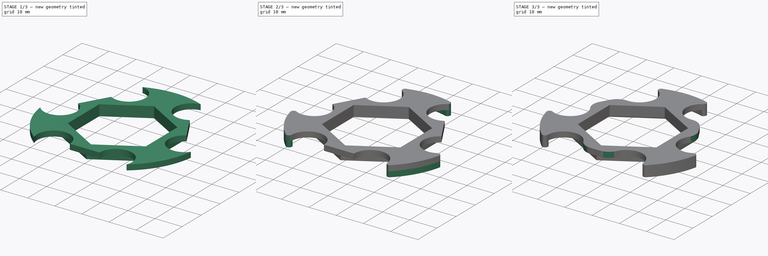
[diagram: build sequence overview — one tinted view per stage of 3, left to right]
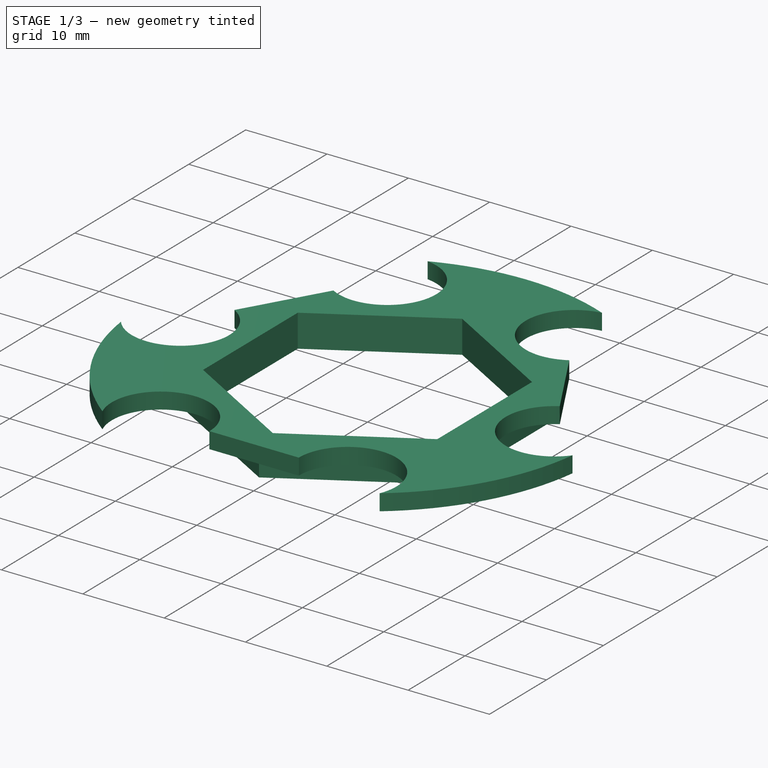
[diagram: stage 1 of 3 — iso view after this stage's code; geometry added in this stage tinted green]
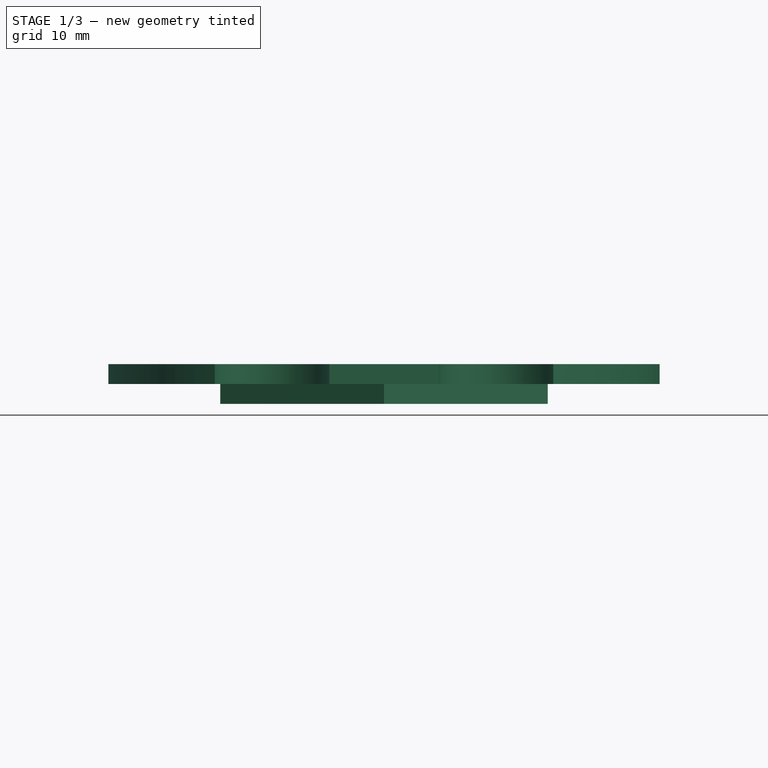
[diagram: stage 1 of 3 — front view after this stage's code; geometry added in this stage tinted green]
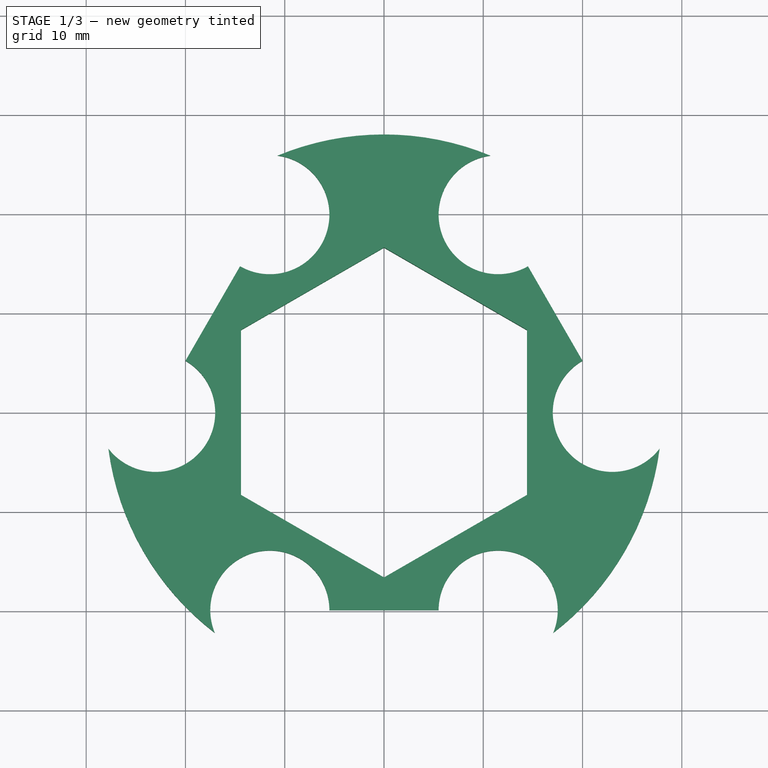
[diagram: stage 1 of 3 — top view after this stage's code; geometry added in this stage tinted green]
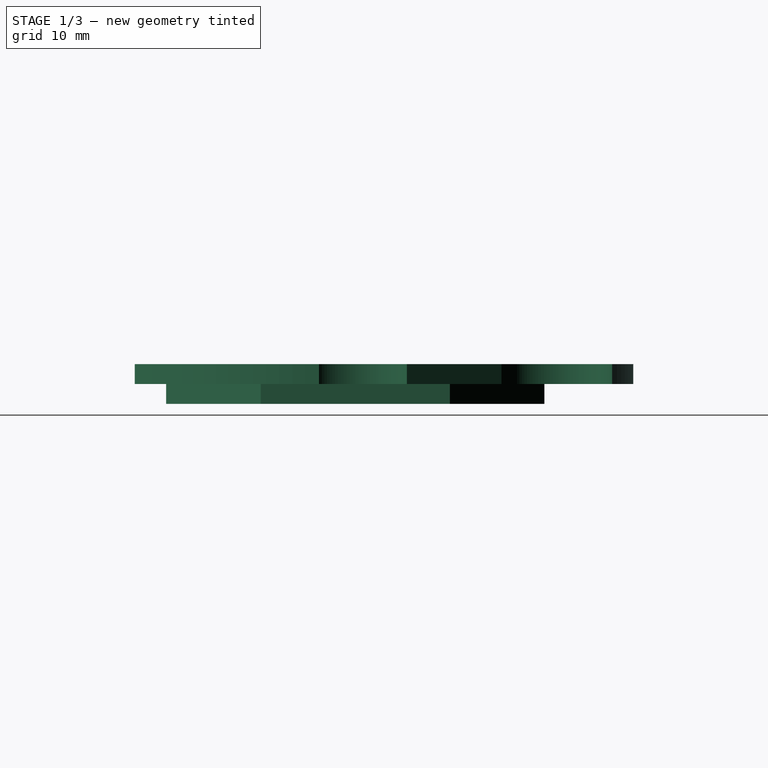
[diagram: stage 1 of 3 — right view after this stage's code; geometry added in this stage tinted green]
FCSTD DOCUMENT  (FreeCAD 0.19R24276 (Git))
Label: Glass_holder_d56_L28_8_v3
License: All rights reserved
LicenseURL: http://en.wikipedia.org/wiki/All_rights_reserved
objects: Sketcher::SketchObject×3, PartDesign::Pad×3, PartDesign::Fillet×2, PartDesign::Chamfer×1, PartDesign::Body×1
note: 16 computed .brp shape members not serialized (recipe doc carries the construction recipe); baked Part::Feature solids carry a one-line shape summary decoded from their .brp

FEATURE [Sketcher::SketchObject] Sketch  label="Sketch_d63,8_L28,8_d15x6"
  FullyConstrained = false
  MapMode = 5
  Support = -> [XY_Plane]
  sketch-geometry (41):
    g0: ArcOfCircle CenterX=0 CenterY=0 CenterZ=0 NormalX=0 NormalY=0 NormalZ=1 AngleXU=0 Radius=28 StartAngle=1.17798 EndAngle=1.96361
    g1: LineSegment StartX=0 StartY=16.6277 StartZ=0 EndX=-14.4 EndY=8.31384 EndZ=0
    g2: LineSegment StartX=-14.4 StartY=8.31384 StartZ=0 EndX=-14.4 EndY=-8.31384 EndZ=0
    g3: LineSegment StartX=-14.4 StartY=-8.31384 StartZ=0 EndX=-1.8e-15 EndY=-16.6277 EndZ=0
    g4: LineSegment StartX=-1.8e-15 StartY=-16.6277 StartZ=0 EndX=14.4 EndY=-8.31384 EndZ=0
    g5: LineSegment StartX=14.4 StartY=-8.31384 StartZ=0 EndX=14.4 EndY=8.31384 EndZ=0
    g6: LineSegment StartX=14.4 StartY=8.31384 StartZ=0 EndX=0 EndY=16.6277 EndZ=0
    g7: Circle CenterX=0 CenterY=0 CenterZ=0 NormalX=0 NormalY=0 NormalZ=1 AngleXU=0 Radius=16.6277
    g8: LineSegment StartX=23 StartY=0 StartZ=0 EndX=11.5 EndY=19.9186 EndZ=0
    g9: LineSegment StartX=11.5 StartY=19.9186 StartZ=0 EndX=-11.5 EndY=19.9186 EndZ=0
    g10: LineSegment StartX=-11.5 StartY=19.9186 StartZ=0 EndX=-23 EndY=3.6e-15 EndZ=0
    g11: LineSegment StartX=-23 StartY=3.6e-15 StartZ=0 EndX=-11.5 EndY=-19.9186 EndZ=0
    g12: LineSegment StartX=-11.5 StartY=-19.9186 StartZ=0 EndX=11.5 EndY=-19.9186 EndZ=0
    g13: LineSegment StartX=11.5 StartY=-19.9186 StartZ=0 EndX=23 EndY=0 EndZ=0
    g14: Circle CenterX=0 CenterY=0 CenterZ=0 NormalX=0 NormalY=0 NormalZ=1 AngleXU=0 Radius=23
    g15: ArcOfCircle CenterX=11.5 CenterY=19.9186 CenterZ=0 NormalX=0 NormalY=0 NormalZ=1 AngleXU=0 Radius=6 StartAngle=1.70149 EndAngle=5.23599
    g16: ArcOfCircle CenterX=23 CenterY=0 CenterZ=0 NormalX=0 NormalY=0 NormalZ=1 AngleXU=0 Radius=6 StartAngle=2.0944 EndAngle=5.62889
    g17: ArcOfCircle CenterX=11.5 CenterY=-19.9186 CenterZ=0 NormalX=0 NormalY=0 NormalZ=1 AngleXU=0 Radius=6 StartAngle=5.89028 EndAngle=9.42478
    g18: ArcOfCircle CenterX=-11.5 CenterY=-19.9186 CenterZ=0 NormalX=0 NormalY=0 NormalZ=1 AngleXU=0 Radius=6 StartAngle=0 EndAngle=3.5345
    g19: ArcOfCircle CenterX=-23 CenterY=3.6e-15 CenterZ=0 NormalX=0 NormalY=0 NormalZ=1 AngleXU=0 Radius=6 StartAngle=3.79589 EndAngle=7.33038
    g20: ArcOfCircle CenterX=-11.5 CenterY=19.9186 CenterZ=0 NormalX=0 NormalY=0 NormalZ=1 AngleXU=0 Radius=6 StartAngle=4.18879 EndAngle=7.72329
    g21: LineSegment StartX=-11.5 StartY=19.9186 StartZ=0 EndX=0 EndY=0 EndZ=0
    g22: LineSegment StartX=-11.5 StartY=19.9186 StartZ=0 EndX=-14 EndY=24.2487 EndZ=0
    g23: LineSegment StartX=0 StartY=0 StartZ=0 EndX=11.5 EndY=19.9186 EndZ=0
    g24: LineSegment StartX=11.5 StartY=19.9186 StartZ=0 EndX=14 EndY=24.2487 EndZ=0
    g25: LineSegment StartX=0 StartY=0 StartZ=0 EndX=23 EndY=0 EndZ=0
    g26: LineSegment StartX=23 StartY=0 StartZ=0 EndX=28 EndY=-6.9e-15 EndZ=0
    g27: LineSegment StartX=0 StartY=0 StartZ=0 EndX=14 EndY=-24.2487 EndZ=0
    g28: LineSegment StartX=0 StartY=0 StartZ=0 EndX=-28 EndY=3.4e-15 EndZ=0
    g29: LineSegment StartX=0 StartY=0 StartZ=0 EndX=-14 EndY=-24.2487 EndZ=0
    g30: ArcOfCircle CenterX=0 CenterY=0 CenterZ=0 NormalX=0 NormalY=0 NormalZ=1 AngleXU=0 Radius=28 StartAngle=5.36677 EndAngle=6.1524
    g31: ArcOfCircle CenterX=0 CenterY=0 CenterZ=0 NormalX=0 NormalY=0 NormalZ=1 AngleXU=0 Radius=28 StartAngle=3.27238 EndAngle=4.058
    g32: LineSegment StartX=14.5 StartY=-25.1147 StartZ=0 EndX=14 EndY=-24.2487 EndZ=0
    g33: LineSegment StartX=29 StartY=1.3e-15 StartZ=0 EndX=28 EndY=-6.9e-15 EndZ=0
    g34: LineSegment StartX=14.5 StartY=25.1147 StartZ=0 EndX=14 EndY=24.2487 EndZ=0
    g35: LineSegment StartX=-14.5 StartY=25.1147 StartZ=0 EndX=-14 EndY=24.2487 EndZ=0
    g36: LineSegment StartX=-29 StartY=-1.3e-15 StartZ=0 EndX=-28 EndY=3.4e-15 EndZ=0
    g37: LineSegment StartX=-14.5 StartY=-25.1147 StartZ=0 EndX=-14 EndY=-24.2487 EndZ=0
    g38: LineSegment StartX=14.5 StartY=14.7224 StartZ=0 EndX=20 EndY=5.19615 EndZ=0
    g39: LineSegment StartX=5.5 StartY=-19.9186 StartZ=0 EndX=-5.5 EndY=-19.9186 EndZ=0
    g40: LineSegment StartX=-20 StartY=5.19615 StartZ=0 EndX=-14.5 EndY=14.7224 EndZ=0
  constraints (98):
    c: Coincident(g0,g-1)
    c: Diameter(g0) = 56
    c: Coincident(g1,g2)
    c: Coincident(g2,g3)
    c: Coincident(g3,g4)
    c: Coincident(g4,g5)
    c: Coincident(g5,g6)
    c: Coincident(g6,g1)
    c: Equal(g1, g2-g6) x5
    c: PointOnObject(g1,g7)
    c: PointOnObject(g2,g7)
    c: PointOnObject(g3,g7)
    c: PointOnObject(g4,g7)
    c: PointOnObject(g5,g7)
    c: PointOnObject(g6,g7)
    c: Coincident(g7,g0)
    c: PointOnObject(g6,g-2)
    c: Coincident(g8,g9)
    c: Coincident(g9,g10)
    c: Coincident(g10,g11)
    c: Coincident(g11,g12)
    c: Coincident(g12,g13)
    c: Coincident(g13,g8)
    c: Equal(g8, g9-g13) x5
    c: PointOnObject(g8,g14)
    c: PointOnObject(g9,g14)
    c: PointOnObject(g10,g14)
    c: PointOnObject(g11,g14)
    c: PointOnObject(g12,g14)
    c: PointOnObject(g13,g14)
    c: Coincident(g14,g0)
    c: Diameter(g14) = 46
    c: Coincident(g15,g8)
    c: Coincident(g16,g8)
    c: Coincident(g17,g12)
    c: Coincident(g18,g11)
    c: Coincident(g19,g10)
    c: Coincident(g20,g9)
    c: Equal(g20,g15)
    c: Equal(g15,g16)
    c: Equal(g16,g17)
    c: Equal(g17,g18)
    c: Equal(g18,g19)
    c: Diameter(g17) = 12
    c: DistanceX(g2,g4) = 28.8
    c: Horizontal(g9)
    c: Coincident(g21,g20)
    c: Coincident(g21,g0)
    c: Coincident(g22,g20)
    c: Parallel(g22,g21)
    c: Coincident(g23,g0)
    c: Coincident(g23,g15)
    c: Coincident(g24,g15)
    c: Parallel(g23,g24)
    c: Coincident(g25,g0)
    c: Coincident(g25,g16)
    c: Coincident(g26,g16)
    c: Parallel(g25,g26)
    c: Coincident(g27,g0)
    c: Parallel(g21,g27)
    c: Coincident(g28,g0)
    c: Parallel(g26,g28)
    c: Coincident(g29,g0)
    c: Parallel(g29,g24)
    c: Equal(g0,g30)
    c: Coincident(g0,g30)
    c: Equal(g0,g31)
    c: Coincident(g0,g31)
    c: PointOnObject(g34,g24)
    c: PointOnObject(g15,g8)
    c: PointOnObject(g33,g26)
    c: PointOnObject(g16,g8)
    c: PointOnObject(g32,g27)
    c: PointOnObject(g17,g12)
    c: PointOnObject(g18,g12)
    c: PointOnObject(g37,g29)
    c: PointOnObject(g35,g22)
    c: PointOnObject(g20,g10)
    c: PointOnObject(g36,g28)
    c: PointOnObject(g19,g10)
    c: Coincident(g37,g29)
    c: Coincident(g36,g28)
    c: Coincident(g35,g22)
    c: Coincident(g34,g24)
    c: Coincident(g33,g26)
    c: Coincident(g32,g27)
    c: Coincident(g38,g15)
    c: Coincident(g39,g17)
    c: Coincident(g40,g19)
    c: Coincident(g40,g20)
    c: Coincident(g38,g16)
    c: Coincident(g39,g18)
    c: Coincident(g0,g15)
    c: Coincident(g0,g20)
    c: Coincident(g31,g19)
    c: Coincident(g31,g18)
    c: Coincident(g30,g17)
    c: Coincident(g30,g16)
FEATURE [Sketcher::SketchObject] Sketch002  label="Sketch002_L28,8_L33"
  FullyConstrained = true
  MapMode = 5
  Placement = pos=(0,0,2) rot=(0,0,1;0rad)
  sketch-geometry (14):
    g0: LineSegment StartX=0 StartY=16.6277 StartZ=0 EndX=-14.4 EndY=8.31384 EndZ=0
    g1: LineSegment StartX=-14.4 StartY=8.31384 StartZ=0 EndX=-14.4 EndY=-8.31384 EndZ=0
    g2: LineSegment StartX=-14.4 StartY=-8.31384 StartZ=0 EndX=1.8e-15 EndY=-16.6277 EndZ=0
    g3: LineSegment StartX=1.8e-15 StartY=-16.6277 StartZ=0 EndX=14.4 EndY=-8.31384 EndZ=0
    g4: LineSegment StartX=14.4 StartY=-8.31384 StartZ=0 EndX=14.4 EndY=8.31384 EndZ=0
    g5: LineSegment StartX=14.4 StartY=8.31384 StartZ=0 EndX=0 EndY=16.6277 EndZ=0
    g6: Circle CenterX=0 CenterY=0 CenterZ=0 NormalX=0 NormalY=0 NormalZ=1 AngleXU=0 Radius=16.6277
    g7: LineSegment StartX=0 StartY=19.0526 StartZ=0 EndX=-16.5 EndY=9.52628 EndZ=0
    g8: LineSegment StartX=-16.5 StartY=9.52628 StartZ=0 EndX=-16.5 EndY=-9.52628 EndZ=0
    g9: LineSegment StartX=-16.5 StartY=-9.52628 StartZ=0 EndX=7.11e-14 EndY=-19.0526 EndZ=0
    g10: LineSegment StartX=7.11e-14 StartY=-19.0526 StartZ=0 EndX=16.5 EndY=-9.52628 EndZ=0
    g11: LineSegment StartX=16.5 StartY=-9.52628 StartZ=0 EndX=16.5 EndY=9.52628 EndZ=0
    g12: LineSegment StartX=16.5 StartY=9.52628 StartZ=0 EndX=0 EndY=19.0526 EndZ=0
    g13: Circle CenterX=0 CenterY=0 CenterZ=0 NormalX=0 NormalY=0 NormalZ=1 AngleXU=0 Radius=19.0526
  constraints (32):
    c: Coincident(g0,g1)
    c: Coincident(g1,g2)
    c: Coincident(g2,g3)
    c: Coincident(g3,g4)
    c: Coincident(g4,g5)
    c: Coincident(g5,g0)
    c: Equal(g0, g1-g5) x5
    c: PointOnObject(g0,g6)
    c: PointOnObject(g1,g6)
    c: PointOnObject(g2,g6)
    c: PointOnObject(g3,g6)
    c: PointOnObject(g4,g6)
    c: PointOnObject(g5,g6)
    c: Coincident(g6,g-1)
    c: PointOnObject(g5,g-2)
    c: Coincident(g7,g8)
    c: Coincident(g8,g9)
    c: Coincident(g9,g10)
    c: Coincident(g10,g11)
    c: Coincident(g11,g12)
    c: Coincident(g12,g7)
    c: Equal(g7, g8-g12) x5
    c: PointOnObject(g7,g13)
    c: PointOnObject(g8,g13)
    c: PointOnObject(g9,g13)
    c: PointOnObject(g10,g13)
    c: PointOnObject(g11,g13)
    c: PointOnObject(g12,g13)
    c: Coincident(g13,g-1)
    c: PointOnObject(g12,g-2)
    c: DistanceX(g1,g3) = 28.8
    c: DistanceX(g8,g10) = 33
FEATURE [PartDesign::Pad] Pad  label="Pad_h2"
  Direction = (1,1,1)
  Length = 2
  Length2 = 100
  Profile = -> Sketch
  Type = 0
FEATURE [PartDesign::Pad] Pad002  label="Pad002_h2"
  BaseFeature = -> Pad
  Direction = (1,1,1)
  Length = 4
  Length2 = 100
  Profile = -> Sketch002
  Reversed = true
  Type = 0
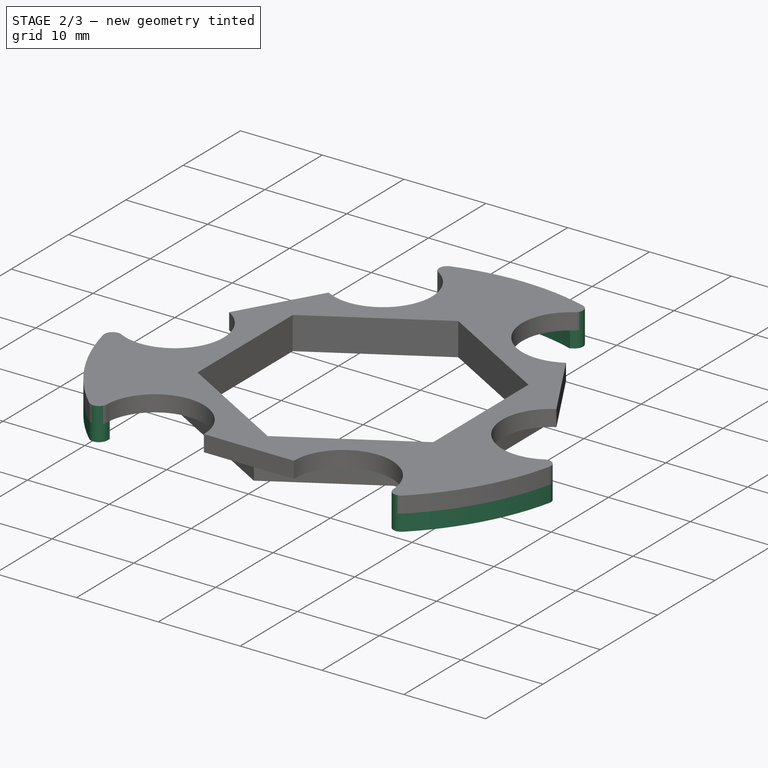
[diagram: stage 2 of 3 — iso view after this stage's code; geometry added in this stage tinted green]
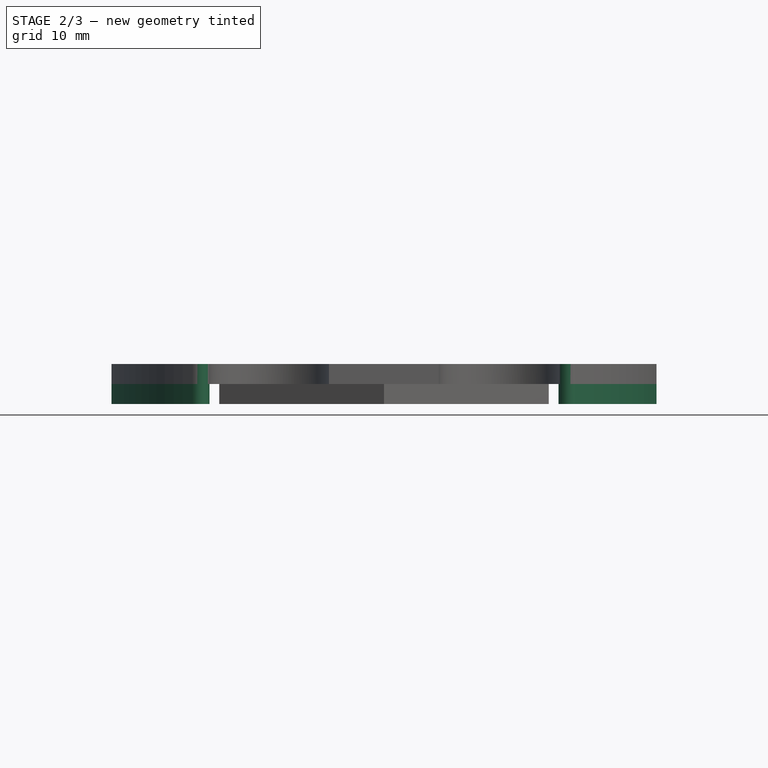
[diagram: stage 2 of 3 — front view after this stage's code; geometry added in this stage tinted green]
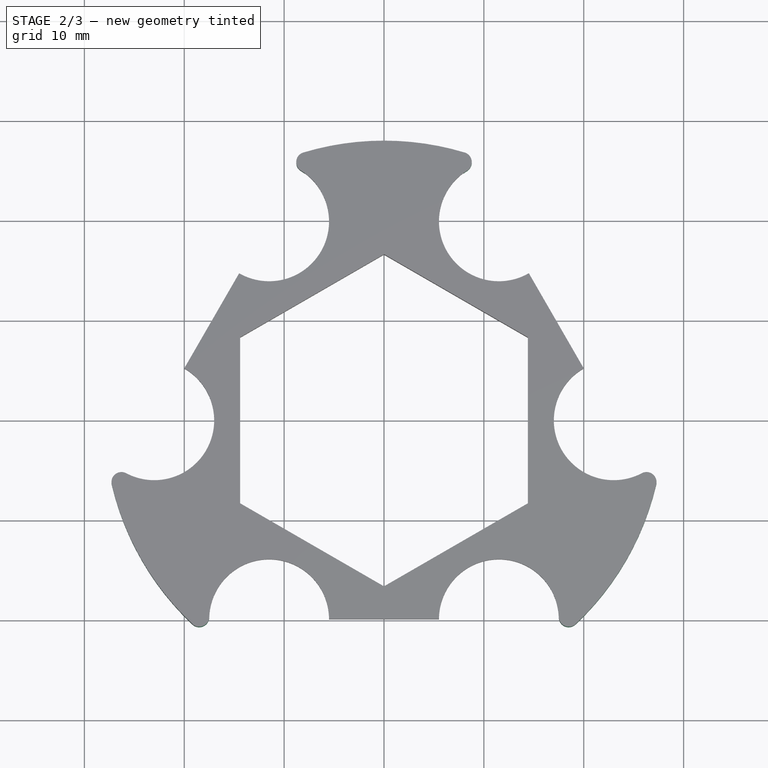
[diagram: stage 2 of 3 — top view after this stage's code; geometry added in this stage tinted green]
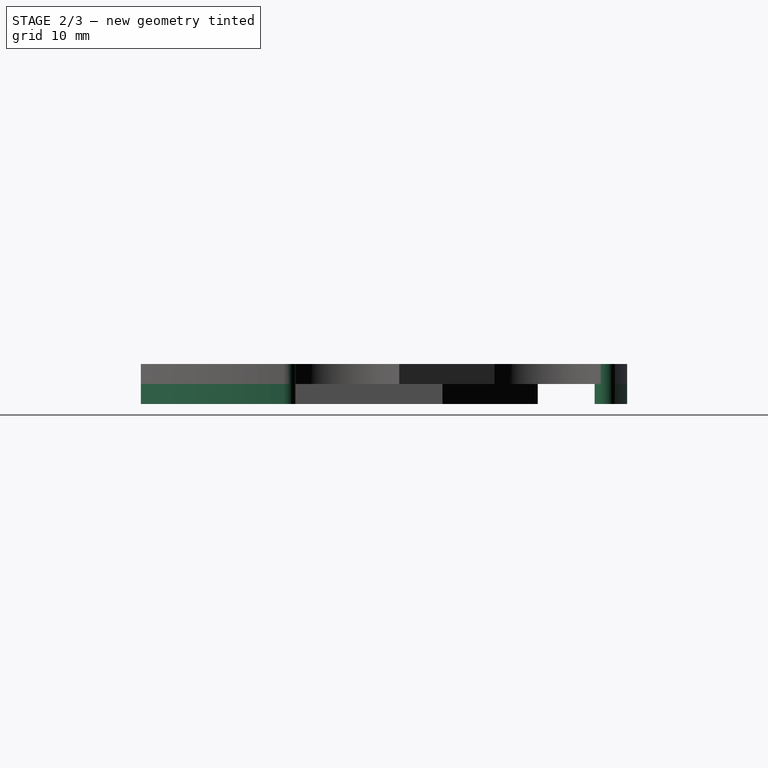
[diagram: stage 2 of 3 — right view after this stage's code; geometry added in this stage tinted green]
FEATURE [Sketcher::SketchObject] Sketch003  label="Sketch_d63,8_L28,8_d15x007"
  FullyConstrained = false
  MapMode = 5
  Support = -> [XY_Plane]
  sketch-geometry (50):
    g0: ArcOfCircle CenterX=0 CenterY=0 CenterZ=0 NormalX=0 NormalY=0 NormalZ=1 AngleXU=0 Radius=28 StartAngle=1.17798 EndAngle=1.96361
    g1: LineSegment StartX=0 StartY=16.6277 StartZ=0 EndX=-14.4 EndY=8.31384 EndZ=0
    g2: LineSegment StartX=-14.4 StartY=8.31384 StartZ=0 EndX=-14.4 EndY=-8.31384 EndZ=0
    g3: LineSegment StartX=-14.4 StartY=-8.31384 StartZ=0 EndX=-1.8e-15 EndY=-16.6277 EndZ=0
    g4: LineSegment StartX=-1.8e-15 StartY=-16.6277 StartZ=0 EndX=14.4 EndY=-8.31384 EndZ=0
    g5: LineSegment StartX=14.4 StartY=-8.31384 StartZ=0 EndX=14.4 EndY=8.31384 EndZ=0
    g6: LineSegment StartX=14.4 StartY=8.31384 StartZ=0 EndX=0 EndY=16.6277 EndZ=0
    g7: Circle CenterX=0 CenterY=0 CenterZ=0 NormalX=0 NormalY=0 NormalZ=1 AngleXU=0 Radius=16.6277
    g8: LineSegment StartX=23 StartY=0 StartZ=0 EndX=11.5 EndY=19.9186 EndZ=0
    g9: LineSegment StartX=11.5 StartY=19.9186 StartZ=0 EndX=-11.5 EndY=19.9186 EndZ=0
    g10: LineSegment StartX=-11.5 StartY=19.9186 StartZ=0 EndX=-23 EndY=3.6e-15 EndZ=0
    g11: LineSegment StartX=-23 StartY=3.6e-15 StartZ=0 EndX=-11.5 EndY=-19.9186 EndZ=0
    g12: LineSegment StartX=-11.5 StartY=-19.9186 StartZ=0 EndX=11.5 EndY=-19.9186 EndZ=0
    g13: LineSegment StartX=11.5 StartY=-19.9186 StartZ=0 EndX=23 EndY=0 EndZ=0
    g14: Circle CenterX=0 CenterY=0 CenterZ=0 NormalX=0 NormalY=0 NormalZ=1 AngleXU=0 Radius=23
    g15: ArcOfCircle CenterX=11.5 CenterY=19.9186 CenterZ=0 NormalX=0 NormalY=0 NormalZ=1 AngleXU=0 Radius=6 StartAngle=1.70149 EndAngle=2.2041
    g16: ArcOfCircle CenterX=23 CenterY=0 CenterZ=0 NormalX=0 NormalY=0 NormalZ=1 AngleXU=0 Radius=6 StartAngle=2.0944 EndAngle=4.58158
    g17: ArcOfCircle CenterX=11.5 CenterY=-19.9186 CenterZ=0 NormalX=0 NormalY=0 NormalZ=1 AngleXU=0 Radius=6 StartAngle=5.89028 EndAngle=6.39289
    g18: ArcOfCircle CenterX=-11.5 CenterY=-19.9186 CenterZ=0 NormalX=0 NormalY=0 NormalZ=1 AngleXU=0 Radius=6 StartAngle=0 EndAngle=2.48719
    g19: ArcOfCircle CenterX=-23 CenterY=3.6e-15 CenterZ=0 NormalX=0 NormalY=0 NormalZ=1 AngleXU=0 Radius=6 StartAngle=3.79589 EndAngle=4.2985
    g20: ArcOfCircle CenterX=-11.5 CenterY=19.9186 CenterZ=0 NormalX=0 NormalY=0 NormalZ=1 AngleXU=0 Radius=6 StartAngle=4.18879 EndAngle=6.67598
    g21: LineSegment StartX=-11.5 StartY=19.9186 StartZ=0 EndX=0 EndY=0 EndZ=0
    g22: LineSegment StartX=-11.5 StartY=19.9186 StartZ=0 EndX=-14 EndY=24.2487 EndZ=0
    g23: LineSegment StartX=0 StartY=0 StartZ=0 EndX=11.5 EndY=19.9186 EndZ=0
    g24: LineSegment StartX=11.5 StartY=19.9186 StartZ=0 EndX=14 EndY=24.2487 EndZ=0
    g25: LineSegment StartX=0 StartY=0 StartZ=0 EndX=23 EndY=0 EndZ=0
    g26: LineSegment StartX=23 StartY=0 StartZ=0 EndX=28 EndY=-6.9e-15 EndZ=0
    g27: LineSegment StartX=0 StartY=0 StartZ=0 EndX=14 EndY=-24.2487 EndZ=0
    g28: LineSegment StartX=0 StartY=0 StartZ=0 EndX=-28 EndY=3.4e-15 EndZ=0
    g29: LineSegment StartX=0 StartY=0 StartZ=0 EndX=-14 EndY=-24.2487 EndZ=0
    g30: ArcOfCircle CenterX=0 CenterY=0 CenterZ=0 NormalX=0 NormalY=0 NormalZ=1 AngleXU=0 Radius=28 StartAngle=5.36677 EndAngle=6.1524
    g31: ArcOfCircle CenterX=0 CenterY=0 CenterZ=0 NormalX=0 NormalY=0 NormalZ=1 AngleXU=0 Radius=28 StartAngle=3.27238 EndAngle=4.058
    g32: LineSegment StartX=14.5 StartY=-25.1147 StartZ=0 EndX=14 EndY=-24.2487 EndZ=0
    g33: LineSegment StartX=29 StartY=1.3e-15 StartZ=0 EndX=28 EndY=-6.9e-15 EndZ=0
    g34: LineSegment StartX=14.5 StartY=25.1147 StartZ=0 EndX=14 EndY=24.2487 EndZ=0
    g35: LineSegment StartX=-14.5 StartY=25.1147 StartZ=0 EndX=-14 EndY=24.2487 EndZ=0
    g36: LineSegment StartX=-29 StartY=-1.3e-15 StartZ=0 EndX=-28 EndY=3.4e-15 EndZ=0
    g37: LineSegment StartX=-14.5 StartY=-25.1147 StartZ=0 EndX=-14 EndY=-24.2487 EndZ=0
    g38: LineSegment StartX=14.5 StartY=14.7224 StartZ=0 EndX=20 EndY=5.19615 EndZ=0
    g39: LineSegment StartX=5.5 StartY=-19.9186 StartZ=0 EndX=-5.5 EndY=-19.9186 EndZ=0
    g40: LineSegment StartX=-20 StartY=5.19615 StartZ=0 EndX=-14.5 EndY=14.7224 EndZ=0
    g41: ArcOfCircle CenterX=0 CenterY=0 CenterZ=0 NormalX=0 NormalY=0 NormalZ=1 AngleXU=0 Radius=26 StartAngle=1.26009 EndAngle=1.88151
    g42: ArcOfCircle CenterX=11.5 CenterY=19.9186 CenterZ=0 NormalX=0 NormalY=0 NormalZ=1 AngleXU=0 Radius=6 StartAngle=2.7488 EndAngle=5.23599
    g43: ArcOfCircle CenterX=-11.5 CenterY=19.9186 CenterZ=0 NormalX=0 NormalY=0 NormalZ=1 AngleXU=0 Radius=6 StartAngle=0.937489 EndAngle=1.4401
    g44: ArcOfCircle CenterX=0 CenterY=0 CenterZ=0 NormalX=0 NormalY=0 NormalZ=1 AngleXU=0 Radius=26 StartAngle=3.35448 EndAngle=3.9759
    g45: ArcOfCircle CenterX=-23 CenterY=3.6e-15 CenterZ=0 NormalX=0 NormalY=0 NormalZ=1 AngleXU=0 Radius=6 StartAngle=4.8432 EndAngle=7.33038
    g46: ArcOfCircle CenterX=0 CenterY=0 CenterZ=0 NormalX=0 NormalY=0 NormalZ=1 AngleXU=0 Radius=26 StartAngle=5.44888 EndAngle=6.0703
    g47: ArcOfCircle CenterX=-11.5 CenterY=-19.9186 CenterZ=0 NormalX=0 NormalY=0 NormalZ=1 AngleXU=0 Radius=6 StartAngle=3.03188 EndAngle=3.5345
    g48: ArcOfCircle CenterX=11.5 CenterY=-19.9186 CenterZ=0 NormalX=0 NormalY=0 NormalZ=1 AngleXU=0 Radius=6 StartAngle=0.654406 EndAngle=3.14159
    g49: ArcOfCircle CenterX=23 CenterY=0 CenterZ=0 NormalX=0 NormalY=0 NormalZ=1 AngleXU=0 Radius=6 StartAngle=5.12628 EndAngle=5.62889
  constraints (128):
    c: Coincident(g0,g-1)
    c: Diameter(g0) = 56
    c: Coincident(g1,g2)
    c: Coincident(g2,g3)
    c: Coincident(g3,g4)
    c: Coincident(g4,g5)
    c: Coincident(g5,g6)
    c: Coincident(g6,g1)
    c: Equal(g1, g2-g6) x5
    c: PointOnObject(g1,g7)
    c: PointOnObject(g2,g7)
    c: PointOnObject(g3,g7)
    c: PointOnObject(g4,g7)
    c: PointOnObject(g5,g7)
    c: PointOnObject(g6,g7)
    c: Coincident(g7,g0)
    c: PointOnObject(g6,g-2)
    c: Coincident(g8,g9)
    c: Coincident(g9,g10)
    c: Coincident(g10,g11)
    c: Coincident(g11,g12)
    c: Coincident(g12,g13)
    c: Coincident(g13,g8)
    c: Equal(g8, g9-g13) x5
    c: PointOnObject(g8,g14)
    c: PointOnObject(g9,g14)
    c: PointOnObject(g10,g14)
    c: PointOnObject(g11,g14)
    c: PointOnObject(g12,g14)
    c: PointOnObject(g13,g14)
    c: Coincident(g14,g0)
    c: Diameter(g14) = 46
    c: Coincident(g15,g8)
    c: Coincident(g16,g8)
    c: Coincident(g17,g12)
    c: Coincident(g18,g11)
    c: Coincident(g19,g10)
    c: Coincident(g20,g9)
    c: Equal(g20,g15)
    c: Equal(g15,g16)
    c: Equal(g16,g17)
    c: Equal(g17,g18)
    c: Equal(g18,g19)
    c: Diameter(g17) = 12
    c: DistanceX(g2,g4) = 28.8
    c: Horizontal(g9)
    c: Coincident(g21,g20)
    c: Coincident(g21,g0)
    c: Coincident(g22,g20)
    c: Parallel(g22,g21)
    c: Coincident(g23,g0)
    c: Coincident(g23,g15)
    c: Coincident(g24,g15)
    c: Parallel(g23,g24)
    c: Coincident(g25,g0)
    c: Coincident(g25,g16)
    c: Coincident(g26,g16)
    c: Parallel(g25,g26)
    c: Coincident(g27,g0)
    c: Parallel(g21,g27)
    c: Coincident(g28,g0)
    c: Parallel(g26,g28)
    c: Coincident(g29,g0)
    c: Parallel(g29,g24)
    c: Equal(g0,g30)
    c: Coincident(g0,g30)
    c: Equal(g0,g31)
    c: Coincident(g0,g31)
    c: PointOnObject(g34,g24)
    c: PointOnObject(g42,g8)
    c: PointOnObject(g33,g26)
    c: PointOnObject(g16,g8)
    c: PointOnObject(g32,g27)
    c: PointOnObject(g48,g12)
    c: PointOnObject(g18,g12)
    c: PointOnObject(g37,g29)
    c: PointOnObject(g35,g22)
    c: PointOnObject(g20,g10)
    c: PointOnObject(g36,g28)
    c: PointOnObject(g45,g10)
    c: Coincident(g37,g29)
    c: Coincident(g36,g28)
    c: Coincident(g35,g22)
    c: Coincident(g34,g24)
    c: Coincident(g33,g26)
    c: Coincident(g32,g27)
    c: Coincident(g38,g42)
    c: Coincident(g39,g48)
    c: Coincident(g40,g45)
    c: Coincident(g40,g20)
    c: Coincident(g38,g16)
    c: Coincident(g39,g18)
    c: Coincident(g0,g15)
    c: Coincident(g0,g43)
    c: Coincident(g31,g19)
    c: Coincident(g31,g47)
    c: Coincident(g30,g17)
    c: Coincident(g30,g49)
    c: Coincident(g41,g0)
    c: Diameter(g41) = 52
    c: Equal(g15,g42)
    c: Coincident(g15,g41)
    c: PointOnObject(g42,g14)
    c: Coincident(g15,g42)
    c: Equal(g20,g43)
    c: PointOnObject(g20,g14)
    c: Coincident(g20,g43)
    c: Equal(g41,g44)
    c: Coincident(g41,g43)
    c: Coincident(g41,g44)
    c: Equal(g19,g45)
    c: Coincident(g19,g44)
    c: PointOnObject(g45,g14)
    c: Coincident(g19,g45)
    c: Equal(g44,g46)
    c: Coincident(g44,g46)
    c: Equal(g18,g47)
    c: PointOnObject(g18,g14)
    c: Coincident(g47,g44)
    c: Coincident(g18,g47)
    c: Equal(g17,g48)
    c: Coincident(g17,g46)
    c: PointOnObject(g48,g14)
    c: Coincident(g17,g48)
    c: Equal(g16,g49)
    c: PointOnObject(g16,g14)
    c: Coincident(g49,g46)
    c: Coincident(g16,g49)
FEATURE [PartDesign::Pad] Pad003
  BaseFeature = -> Pad002
  Direction = (1,1,1)
  Length = 2
  Length2 = 100
  Profile = -> Sketch003
  Reversed = true
  Type = 0
FEATURE [PartDesign::Fillet] Fillet
  Base = -> Pad003 [Edge1,Edge12,Edge90,Edge50,Edge92,Edge58,Edge95,Edge62,Edge97,Edge67,Edge48,Edge6]
  BaseFeature = -> Pad003
  Radius = 1
  SupportTransform = false
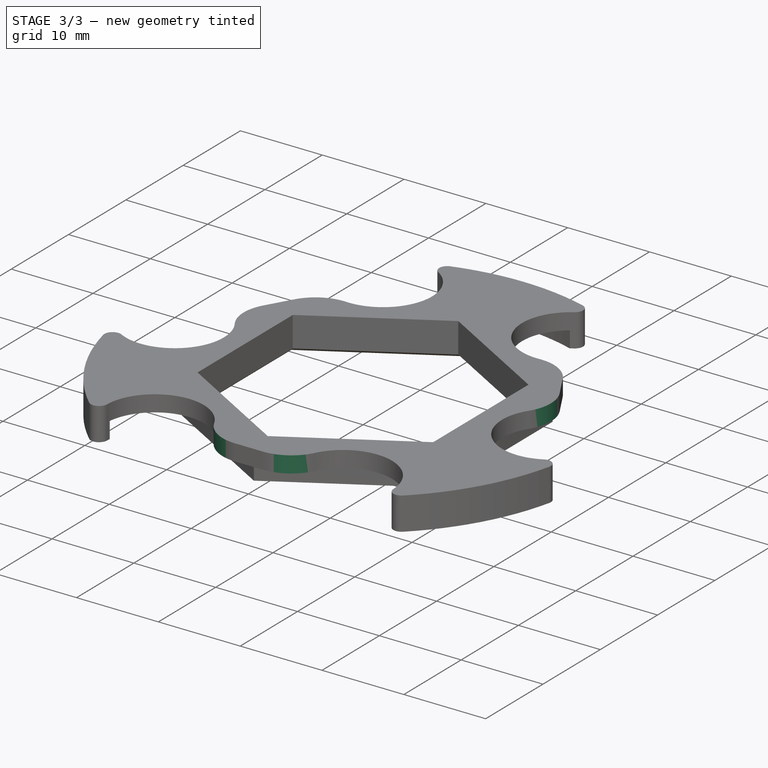
[diagram: stage 3 of 3 — iso view after this stage's code; geometry added in this stage tinted green]
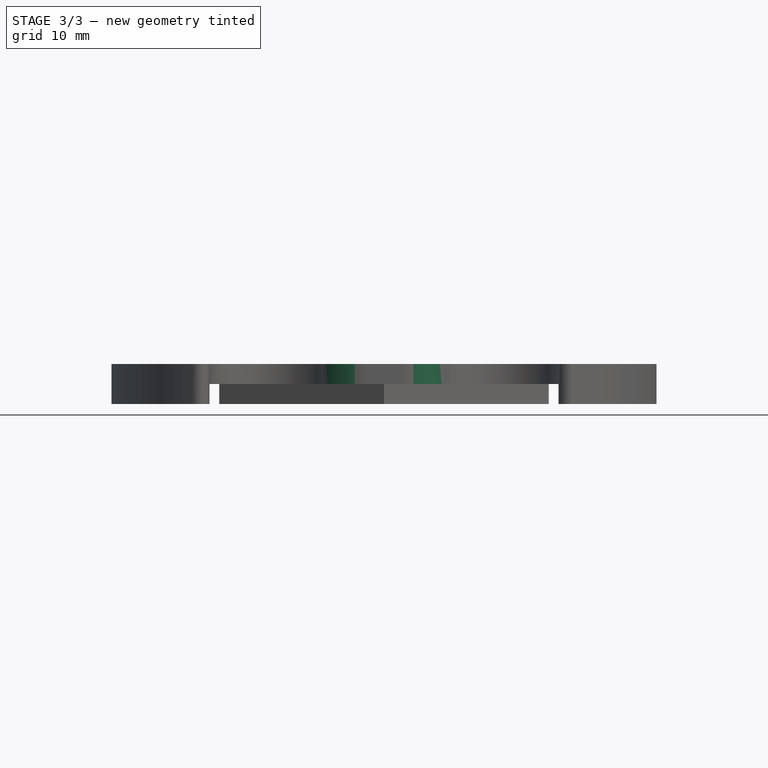
[diagram: stage 3 of 3 — front view after this stage's code; geometry added in this stage tinted green]
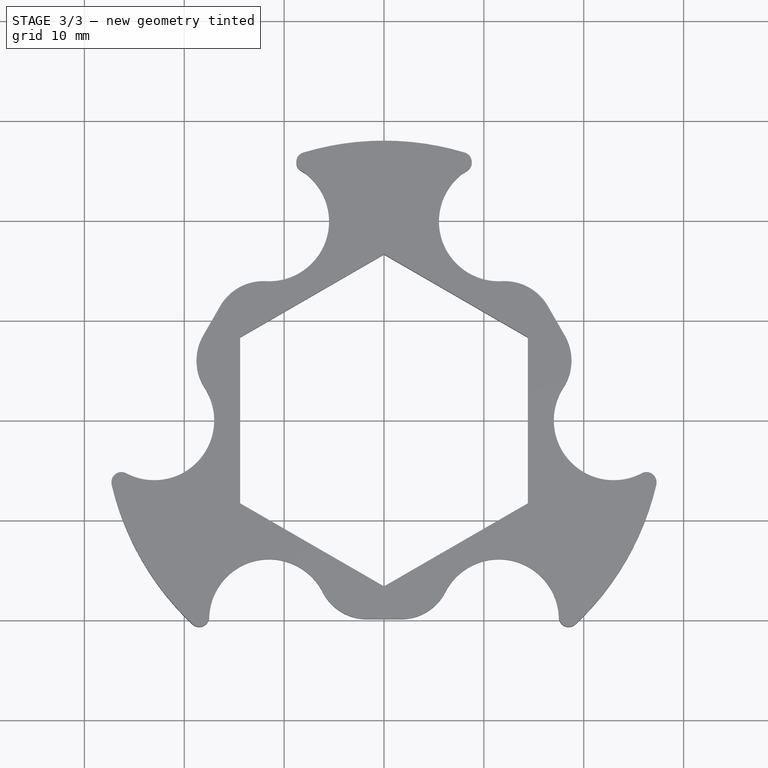
[diagram: stage 3 of 3 — top view after this stage's code; geometry added in this stage tinted green]
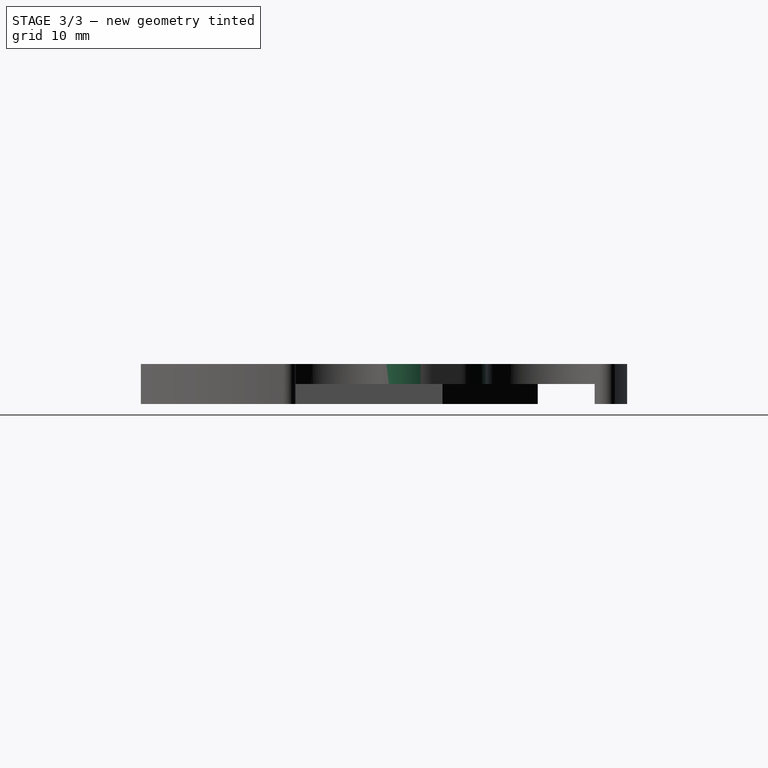
[diagram: stage 3 of 3 — right view after this stage's code; geometry added in this stage tinted green]
FEATURE [PartDesign::Fillet] Fillet001
  Base = -> Fillet [Edge5,Edge51,Edge68,Edge78,Edge77,Edge69]
  BaseFeature = -> Fillet
  Radius = 5
  SupportTransform = false
FEATURE [PartDesign::Chamfer] Chamfer
  Angle = 45
  Base = -> Fillet001 [Edge145,Edge146,Edge147,Edge148,Edge143,Edge144]
  BaseFeature = -> Fillet001
  ChamferType = 0
  FlipDirection = false
  Size = 0.3
  Size2 = 1
  SupportTransform = false
FEATURE [PartDesign::Body] Body
  Group = -> [Sketch,Pad,Sketch002,Pad002,Sketch003,Pad003,Fillet,Fillet001,Chamfer]
  Origin = -> Origin
  Tip = -> Chamfer
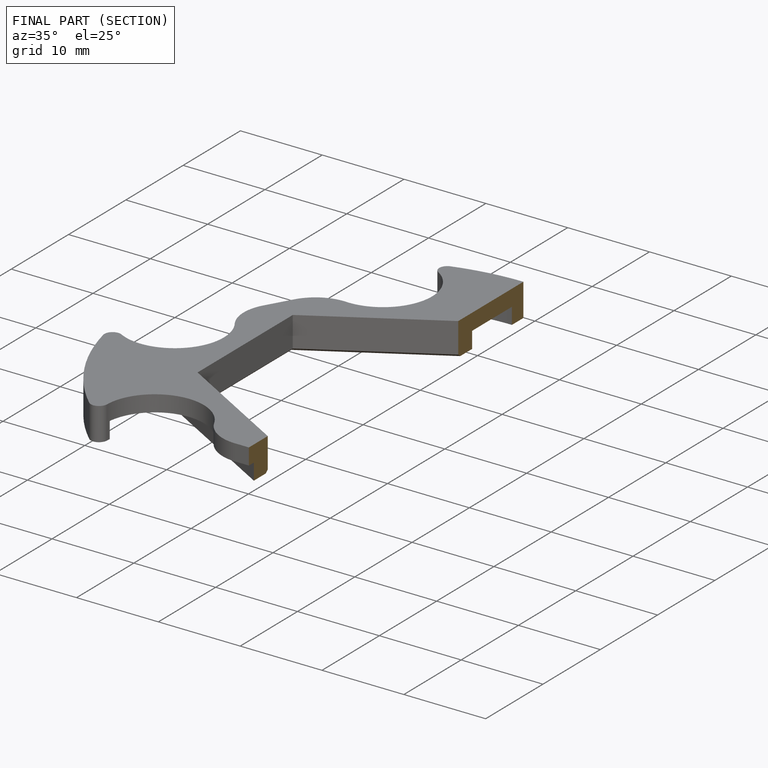
[diagram: finished part — half-section view (interior)]
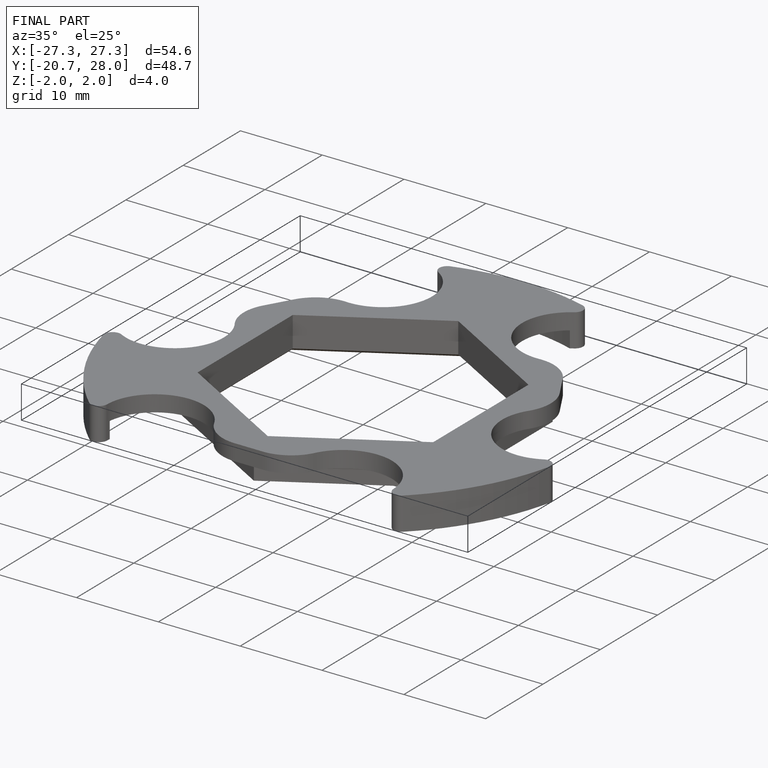
[diagram: finished part — iso view with bounding-box wireframe]
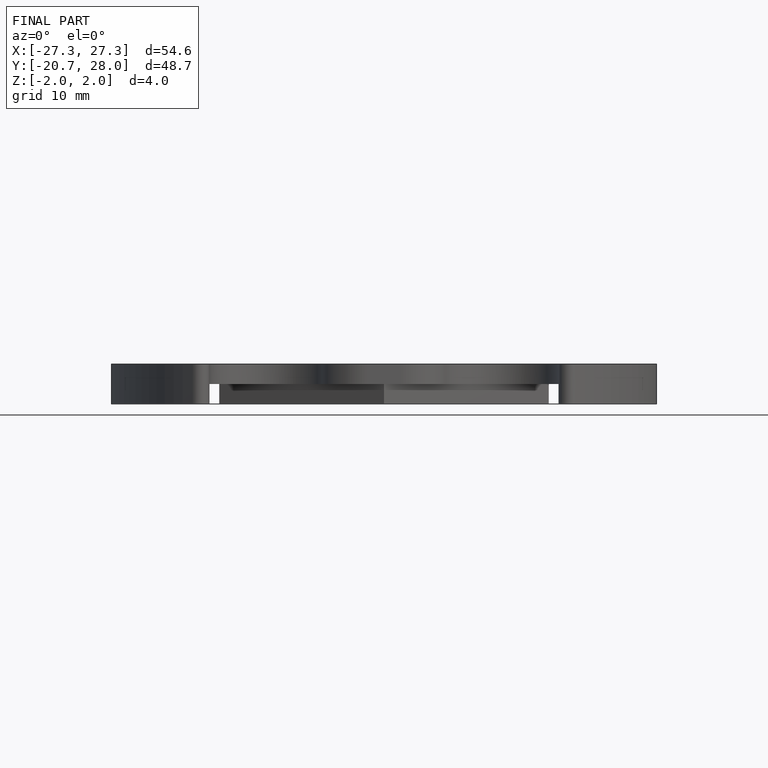
[diagram: finished part — front view with bounding-box wireframe]
